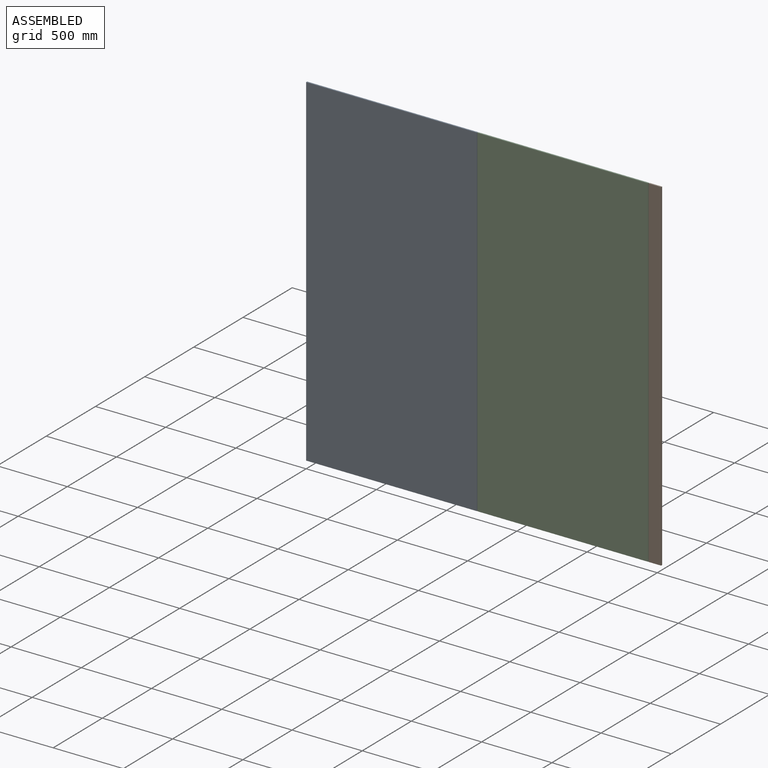
[diagram: assembled view]
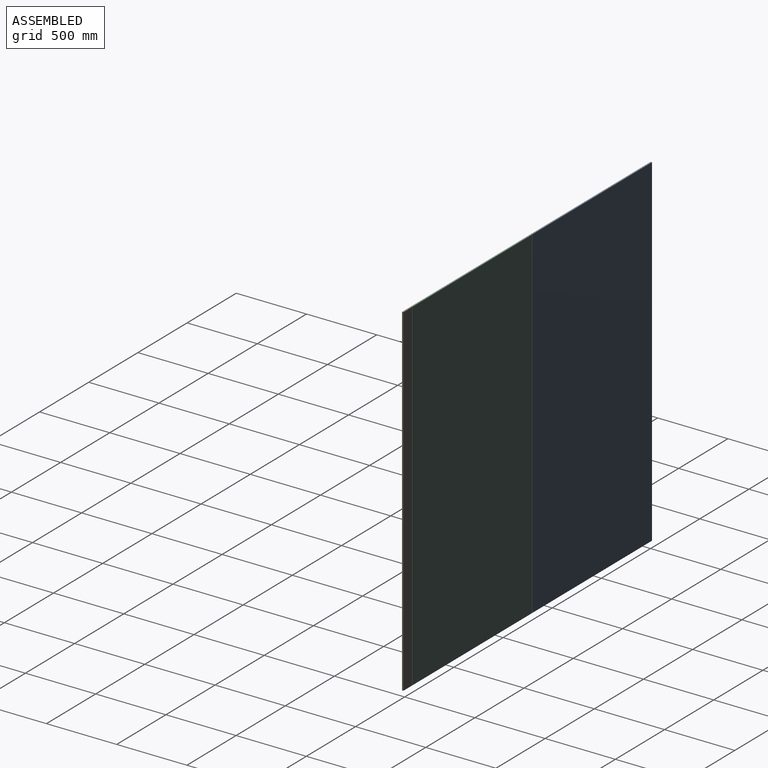
[diagram: assembled view, second angle]
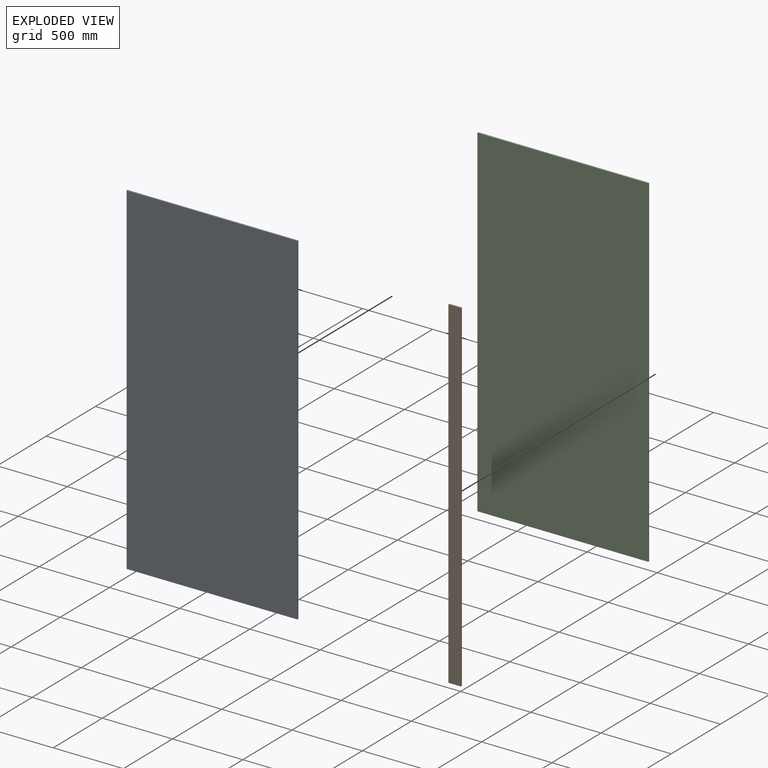
[diagram: exploded view]
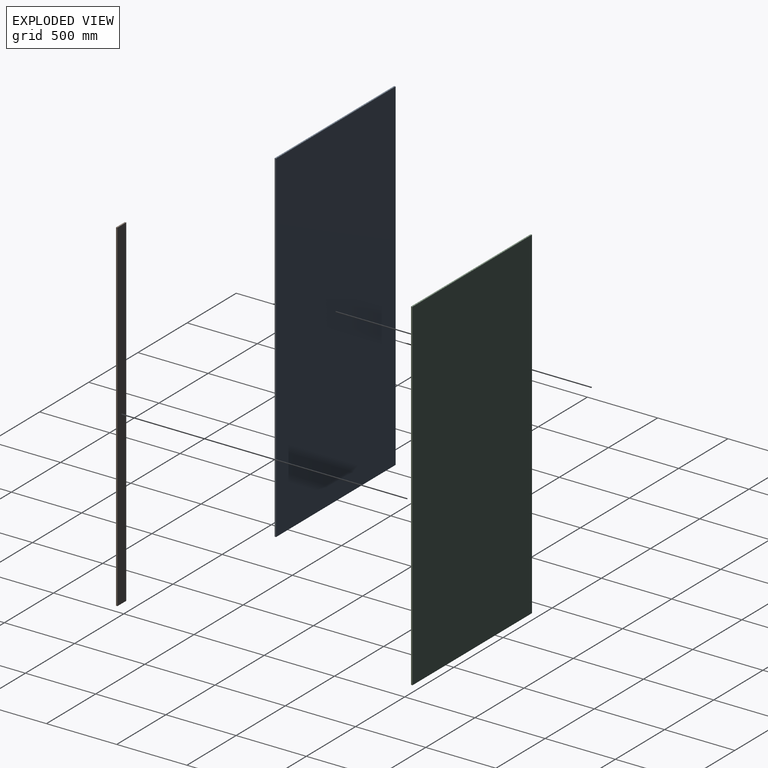
[diagram: exploded view, second angle]
ASSEMBLY  parts=3 mates=2
PART A: 6 faces, bbox 1216x10.2x2435.2 mm
  f0: plane 1216.03x10.16mm, normal (0,0,1), area 12354.8mm2, adj f1,f3,f4,f5
  f1: plane 2435.23x10.16mm, normal (-1,0,0), area 24741.9mm2, adj f0,f2,f4,f5
  f2: plane 1216.03x10.16mm, normal (0,0,-1), area 12354.8mm2, adj f1,f3,f4,f5
  f3: plane 2435.23x10.16mm, normal (1,0,0), area 24741.9mm2, adj f0,f2,f4,f5
  f4: plane 2435.23x1216.03mm, normal (0,-1,0), area 2961294.5mm2, adj f0,f1,f2,f3
  f5: plane 2435.23x1216.03mm, normal (0,1,0), area 2961294.5mm2, adj f0,f1,f2,f3
PART B: 6 faces, bbox 88.9x10.2x2435.2 mm
  f0: plane 2435.23x88.9mm, normal (0,1,0), area 216491.5mm2, adj f1,f2,f3,f5
  f1: plane 88.9x10.16mm, normal (0,0,1), area 903.2mm2, adj f0,f2,f4,f5
  f2: plane 2435.23x10.16mm, normal (-1,0,0), area 24741.9mm2, adj f0,f1,f3,f4
  f3: plane 88.9x10.16mm, normal (0,0,-1), area 903.2mm2, adj f0,f2,f4,f5
  f4: plane 2435.23x88.9mm, normal (0,-1,0), area 216491.5mm2, adj f1,f2,f3,f5
  f5: plane 2435.23x10.16mm, normal (1,0,0), area 24741.9mm2, adj f0,f1,f3,f4
PART C: same geometry as A
PLACE A t=(4492,10.16,2435.23)mm
PLACE B t=(5650.24,10.16,2435.23)mm
PLACE C t=(5711.2,10.16,2435.23)mm
MATE fastened C.f4 <-> A.f4  axis (0,-1,0) through (1219.2,0,2435.23)mm
MATE fastened C.f4 <-> B.f4  axis (0,-1,0) through (2435.22,0,2435.23)mm
